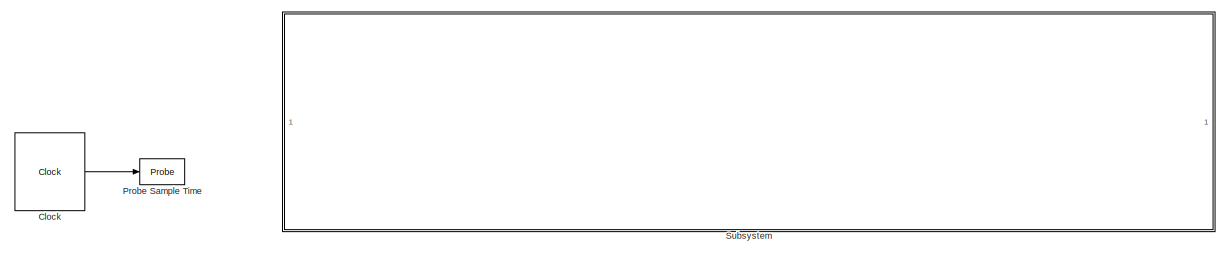
[diagram: root canvas - part 1/2, full width, top band]
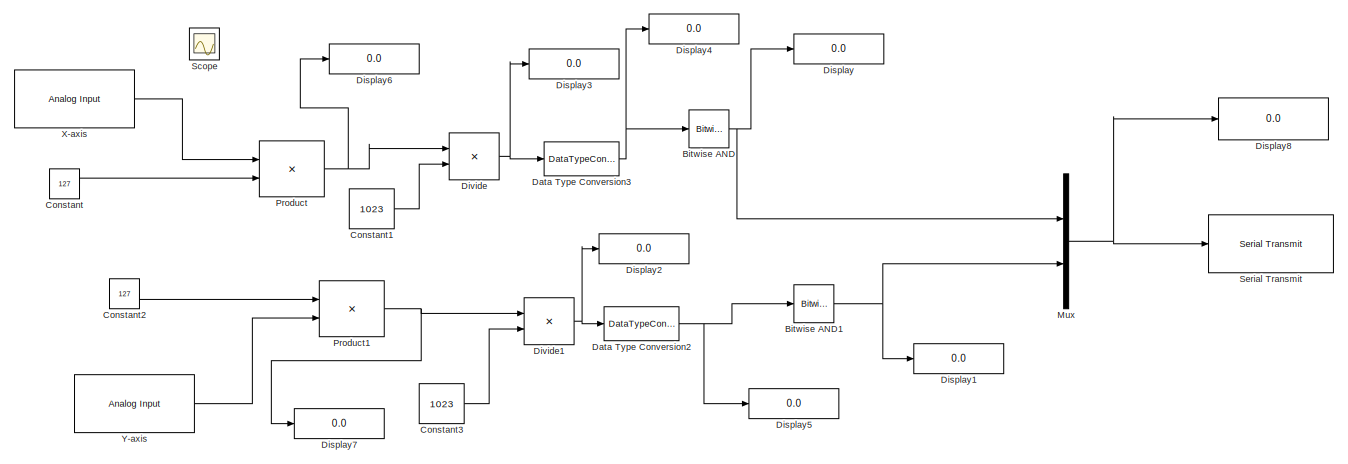
[diagram: root canvas - part 2/2, full width, bottom band]
MODEL slx_3556c48ba67e
KIND model
CONFIG AbsTol = auto
CONFIG EnableMultiTasking = on
CONFIG FixedStep = auto
CONFIG MaxStep = auto
CONFIG MinStep = auto
CONFIG RelTol = 1e-3
CONFIG SampleTimeConstraint = Unconstrained
CONFIG SolverName = FixedStepAuto
CONFIG StartTime = 0.0
CONFIG StopTime = inf
BLOCK [Reference] Bitwise AND  REF=simulink/Logic and Bit
Operations/Bitwise
Operator
  LibrarySourceBlock = simulink/Quick Insert/Logic and Bit\nOperations/Bitwise AND
  SourceBlock = simulink/Logic and Bit\nOperations/Bitwise\nOperator
  SourceType = Bitwise Operator
BLOCK [Reference] Bitwise AND1  REF=simulink/Logic and Bit
Operations/Bitwise
Operator
  LibrarySourceBlock = simulink/Quick Insert/Logic and Bit\nOperations/Bitwise AND
  SourceBlock = simulink/Logic and Bit\nOperations/Bitwise\nOperator
  SourceType = Bitwise Operator
BLOCK [Reference] Clock  REF=simulink_extras/Flip Flops/Clock
  Commented = on
  SourceBlock = simulink_extras/Flip Flops/Clock
  SourceType = Digital clock
BLOCK [Constant] Constant
  OutDataTypeStr = uint8
  Value = 127
BLOCK [Constant] Constant1
  Value = 1023
BLOCK [Constant] Constant2
  OutDataTypeStr = uint8
  Value = 127
BLOCK [Constant] Constant3
  Value = 1023
BLOCK [DataTypeConversion] Data Type Conversion2
  ConvertRealWorld = Stored Integer (SI)
  LockScale = on
  OutDataTypeStr = uint8
  RndMeth = Round
  SaturateOnIntegerOverflow = off
BLOCK [DataTypeConversion] Data Type Conversion3
  ConvertRealWorld = Stored Integer (SI)
  LockScale = on
  OutDataTypeStr = uint8
  RndMeth = Round
  SaturateOnIntegerOverflow = off
BLOCK [Display] Display
  Decimation = 1
BLOCK [Display] Display1
  Decimation = 1
BLOCK [Display] Display2
  Decimation = 1
BLOCK [Display] Display3
  Decimation = 1
BLOCK [Display] Display4
  Decimation = 1
BLOCK [Display] Display5
  Decimation = 1
BLOCK [Display] Display6
  Decimation = 1
  Format = long
BLOCK [Display] Display7
  Decimation = 1
  Format = long
BLOCK [Display] Display8
  Decimation = 1
BLOCK [Product] Divide
  Inputs = */
  OutDataTypeStr = Inherit: Match scaling
  RndMeth = Round
BLOCK [Product] Divide1
  Inputs = */
  OutDataTypeStr = Inherit: Match scaling
  RndMeth = Round
BLOCK [Mux] Mux
  DisplayOption = bar
  Inputs = 2
BLOCK [Probe] Probe Sample Time
  Commented = on
  ProbeComplexSignal = off
  ProbeWidth = off
BLOCK [Product] Product
  OutDataTypeStr = Inherit: Match scaling
BLOCK [Product] Product1
  OutDataTypeStr = Inherit: Match scaling
BLOCK [Scope] Scope
  Floating = off
  GraphicalSettings = {"GraphicalSettings":{"LegacySettings":true,"Style":{"Style":{"PlotType":"Auto"}}}}
  IOType = viewer
  NumInputPorts = 1
  ScopeFrameLocation = window
  WasSavedAsWebScope = on
  WindowPosition = [819.000000,235.000000,560.000000,414.000000,]
BLOCK [Reference] Serial Transmit  REF=arduinolib/Serial Transmit
  SourceBlock = arduinolib/Serial Transmit
  SourceType = Arduino Serial Transmit
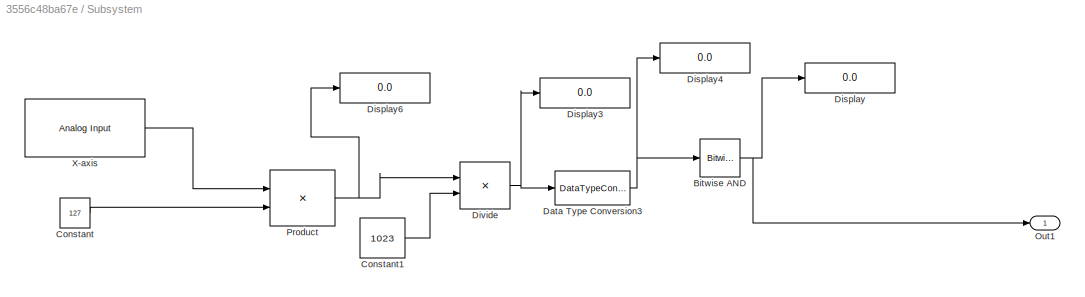
BLOCK [SubSystem] Subsystem
  Commented = on
BLOCK [Reference] Subsystem/Bitwise AND  REF=simulink/Logic and Bit
Operations/Bitwise
Operator
  LibrarySourceBlock = simulink/Quick Insert/Logic and Bit\nOperations/Bitwise AND
  SourceBlock = simulink/Logic and Bit\nOperations/Bitwise\nOperator
  SourceType = Bitwise Operator
BLOCK [Constant] Subsystem/Constant
  OutDataTypeStr = uint8
  Value = 127
BLOCK [Constant] Subsystem/Constant1
  Value = 1023
BLOCK [DataTypeConversion] Subsystem/Data Type Conversion3
  ConvertRealWorld = Stored Integer (SI)
  LockScale = on
  OutDataTypeStr = uint8
  RndMeth = Round
  SaturateOnIntegerOverflow = off
BLOCK [Display] Subsystem/Display
  Decimation = 1
BLOCK [Display] Subsystem/Display3
  Decimation = 1
BLOCK [Display] Subsystem/Display4
  Decimation = 1
BLOCK [Display] Subsystem/Display6
  Decimation = 1
  Format = long
BLOCK [Product] Subsystem/Divide
  Inputs = */
  OutDataTypeStr = Inherit: Match scaling
  RndMeth = Round
BLOCK [Outport] Subsystem/Out1
BLOCK [Product] Subsystem/Product
  OutDataTypeStr = Inherit: Match scaling
BLOCK [Reference] Subsystem/X-axis  REF=arduinolib/Analog Input
  LibrarySourceBlock = gizmoLibrary/Arduino Utilities/Analog Input
  SourceBlock = arduinolib/Analog Input
  SourceType = Arduino Analog Input
BLOCK [Reference] X-axis  REF=arduinolib/Analog Input
  LibrarySourceBlock = gizmoLibrary/Arduino Utilities/Analog Input
  SourceBlock = arduinolib/Analog Input
  SourceType = Arduino Analog Input
BLOCK [Reference] Y-axis  REF=arduinolib/Analog Input
  LibrarySourceBlock = gizmoLibrary/Arduino Utilities/Analog Input
  SourceBlock = arduinolib/Analog Input
  SourceType = Arduino Analog Input
NET Bitwise AND1:1 -> Display1:1, Mux:2
NET Bitwise AND:1 -> Display:1, Mux:1
LINE Clock:1 -> Probe Sample Time:1
LINE Constant1:1 -> Divide:2
LINE Constant2:1 -> Product1:1
LINE Constant3:1 -> Divide1:2
LINE Constant:1 -> Product:2
NET Data Type Conversion2:1 -> Bitwise AND1:1, Display5:1
NET Data Type Conversion3:1 -> Bitwise AND:1, Display4:1
NET Divide1:1 -> Data Type Conversion2:1, Display2:1
NET Divide:1 -> Data Type Conversion3:1, Display3:1
NET Mux:1 -> Display8:1, Serial Transmit:1
NET Product1:1 -> Display7:1, Divide1:1
NET Product:1 -> Display6:1, Divide:1
NET Subsystem/Bitwise AND:1 -> Subsystem/Display:1, Subsystem/Out1:1
LINE Subsystem/Constant1:1 -> Subsystem/Divide:2
LINE Subsystem/Constant:1 -> Subsystem/Product:2
NET Subsystem/Data Type Conversion3:1 -> Subsystem/Bitwise AND:1, Subsystem/Display4:1
NET Subsystem/Divide:1 -> Subsystem/Data Type Conversion3:1, Subsystem/Display3:1
NET Subsystem/Product:1 -> Subsystem/Display6:1, Subsystem/Divide:1
LINE Subsystem/X-axis:1 -> Subsystem/Product:1
LINE X-axis:1 -> Product:1
LINE Y-axis:1 -> Product1:2
note: NET lines group one-source signal fan-out (src -> all destinations, sorted); 1:1 wires keep LINE
